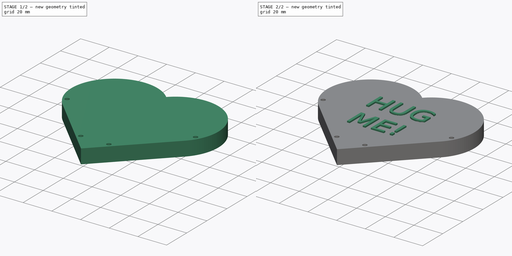
[diagram: build sequence overview — one tinted view per stage of 2, left to right]
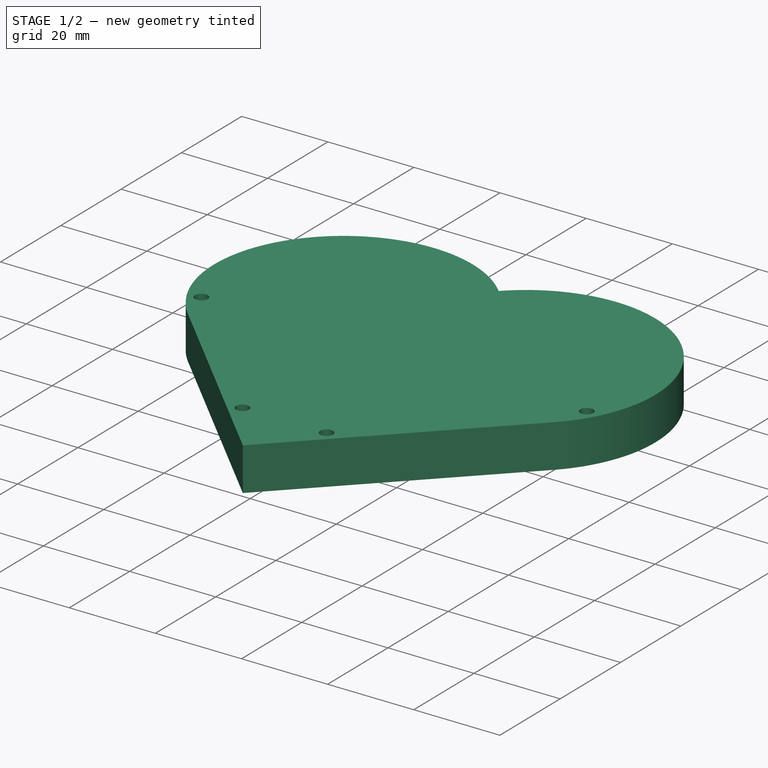
[diagram: stage 1 of 2 — iso view after this stage's code; geometry added in this stage tinted green]
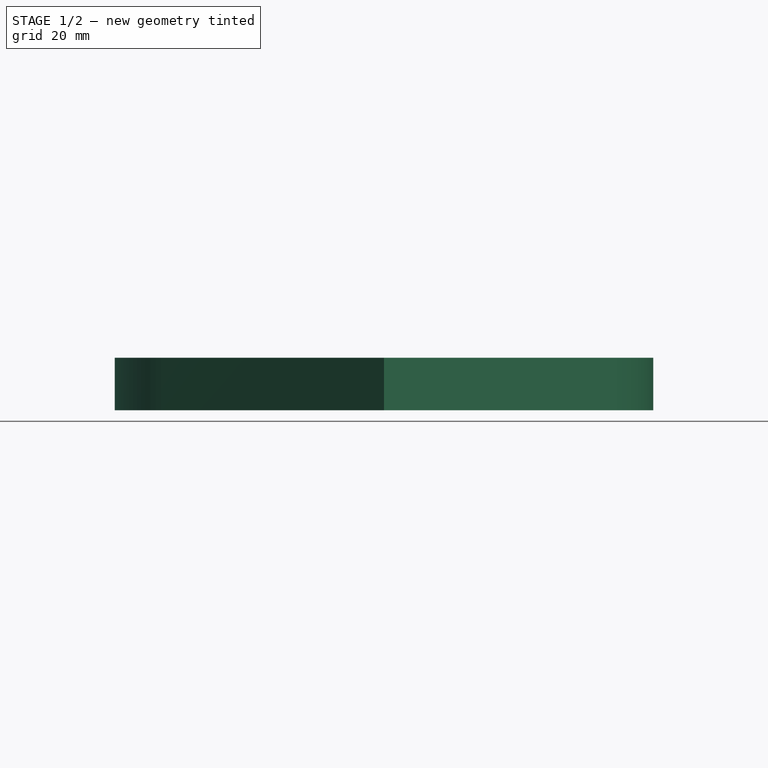
[diagram: stage 1 of 2 — front view after this stage's code; geometry added in this stage tinted green]
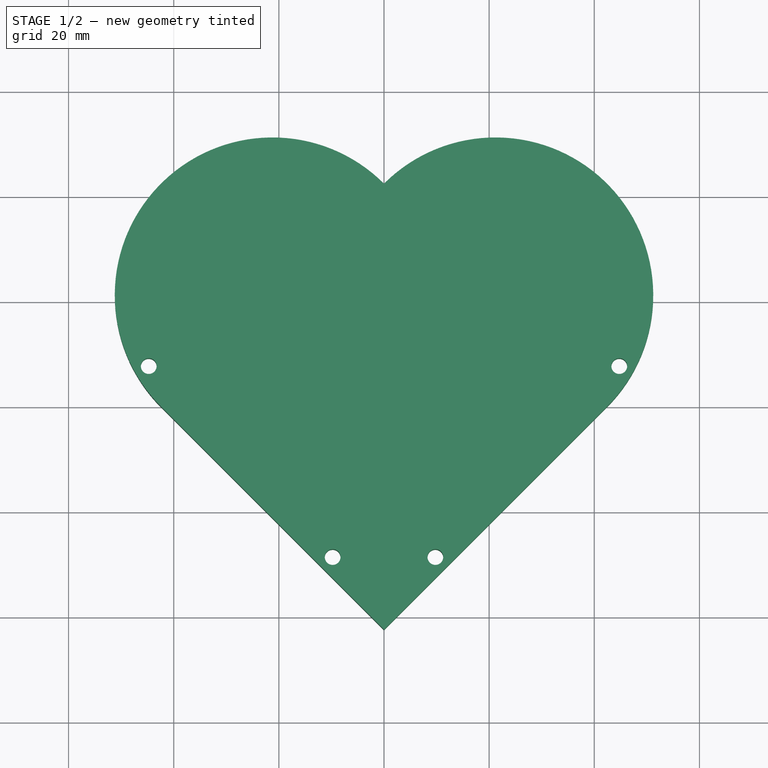
[diagram: stage 1 of 2 — top view after this stage's code; geometry added in this stage tinted green]
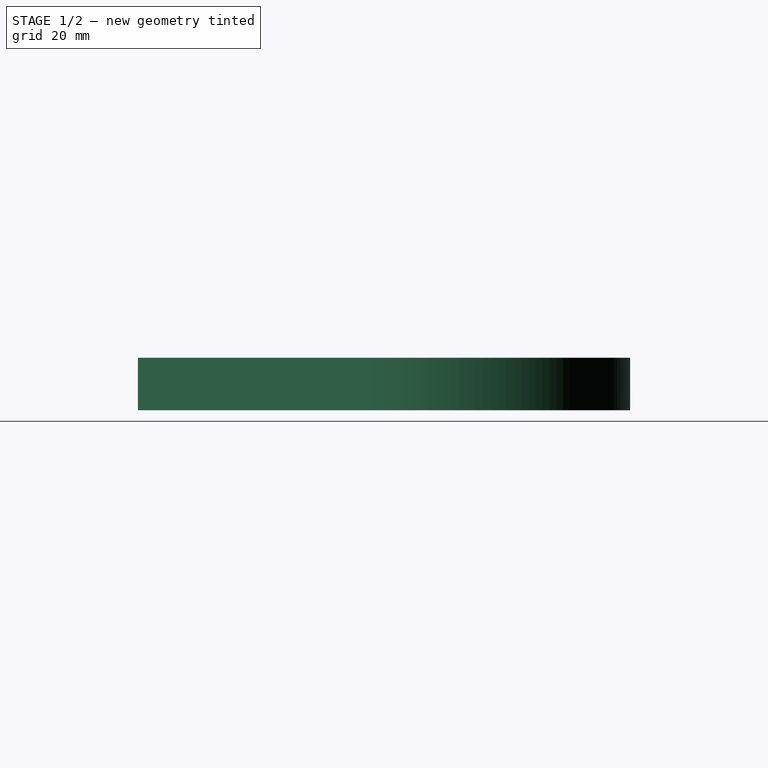
[diagram: stage 1 of 2 — right view after this stage's code; geometry added in this stage tinted green]
FCSTD DOCUMENT  (FreeCAD 0.15R4671 (Git))
Label: heart
License: All rights reserved
LicenseURL: http://en.wikipedia.org/wiki/All_rights_reserved
objects: Part::Feature×7, Sketcher::SketchObject×2, Part::MultiFuse×2, PartDesign::Pad×1, Part::Extrusion×1, PartDesign::Pocket×1
note: 16 computed .brp shape members not serialized (recipe doc carries the construction recipe); baked Part::Feature solids carry a one-line shape summary decoded from their .brp

FEATURE [Sketcher::SketchObject] Sketch001  label="heart"
  sketch-geometry (6):
    g0: LineSegment StartX=0 StartY=-42.4264 StartZ=0 EndX=42.4264 EndY=0 EndZ=0
    g1: LineSegment StartX=0 StartY=-42.4264 StartZ=0 EndX=-42.4264 EndY=0 EndZ=0
    g2: LineSegment [constr] StartX=-42.4264 StartY=0 StartZ=0 EndX=0 EndY=42.4264 EndZ=0
    g3: LineSegment [constr] StartX=0 StartY=42.4264 StartZ=0 EndX=42.4264 EndY=0 EndZ=0
    g4: ArcOfCircle CenterX=-21.2132 CenterY=21.2132 CenterZ=0 NormalX=0 NormalY=0 NormalZ=1 Radius=30 StartAngle=0.785398 EndAngle=3.92699
    g5: ArcOfCircle CenterX=21.2132 CenterY=21.2132 CenterZ=0 NormalX=0 NormalY=0 NormalZ=1 Radius=30 StartAngle=5.49779 EndAngle=8.63938
  constraints (21):
    c: PointOnObject(g0,g-2)
    c: PointOnObject(g0,g-1)
    c: PointOnObject(g1,g-1)
    c: Coincident(g1,g0)
    c: PointOnObject(g2,g-2)
    c: Coincident(g3,g2)
    c: Coincident(g3,g0)
    c: Coincident(g1,g2)
    c: Perpendicular(g1,g0)
    c: Perpendicular(g2,g3)
    c: Equal(g0,g2)
    c: Equal(g2,g3)
    c: Equal(g3,g1)
    c: Coincident(g4,g1)
    c: Coincident(g4,g2)
    c: Coincident(g5,g0)
    c: PointOnObject(g5,g3)
    c: PointOnObject(g5,g3)
    c: PointOnObject(g4,g2)
    c: Distance(g0) = 60
    c: Coincident(g5,g2)
FEATURE [PartDesign::Pad] Pad
  Length = 10
  Length2 = 100
  Reversed = true
  Sketch = -> Sketch001
  Type = 0
FEATURE [Sketcher::SketchObject] Sketch  label="holes"
  Support = -> Pad [Face5]
  sketch-geometry (8):
    g0: LineSegment [constr] StartX=-9.76909 StartY=-28.6077 StartZ=0 EndX=9.76909 EndY=-28.6077 EndZ=0
    g1: LineSegment [constr] StartX=9.76909 StartY=-28.6077 StartZ=0 EndX=44.7525 EndY=7.72123 EndZ=0
    g2: LineSegment [constr] StartX=44.7525 StartY=7.72123 StartZ=0 EndX=-44.7525 EndY=7.72123 EndZ=0
    g3: LineSegment [constr] StartX=-44.7525 StartY=7.72123 StartZ=0 EndX=-9.76909 EndY=-28.6077 EndZ=0
    g4: Circle CenterX=-44.7525 CenterY=7.72123 CenterZ=0 NormalX=0 NormalY=0 NormalZ=1 Radius=1.5
    g5: Circle CenterX=-9.76909 CenterY=-28.6077 CenterZ=0 NormalX=0 NormalY=0 NormalZ=1 Radius=1.5
    g6: Circle CenterX=44.7525 CenterY=7.72123 CenterZ=0 NormalX=0 NormalY=0 NormalZ=1 Radius=1.5
    g7: Circle CenterX=9.76909 CenterY=-28.6077 CenterZ=0 NormalX=0 NormalY=0 NormalZ=1 Radius=1.5
  constraints (16):
    c: Coincident(g0,g1)
    c: Coincident(g1,g2)
    c: Coincident(g2,g3)
    c: Coincident(g3,g0)
    c: Horizontal(g0)
    c: Horizontal(g2)
    c: Coincident(g5,g0)
    c: Coincident(g7,g0)
    c: Coincident(g2,g4)
    c: Coincident(g1,g6)
    c: Symmetric(g2,g1,g-2)
    c: Symmetric(g0,g0,g-2)
    c: Equal(g6,g4)
    c: Equal(g4,g5)
    c: Equal(g5,g7)
    c: Radius(g4) = 1.5
FEATURE [PartDesign::Pocket] Pocket
  Length = 5
  Sketch = -> Sketch
  Type = 1
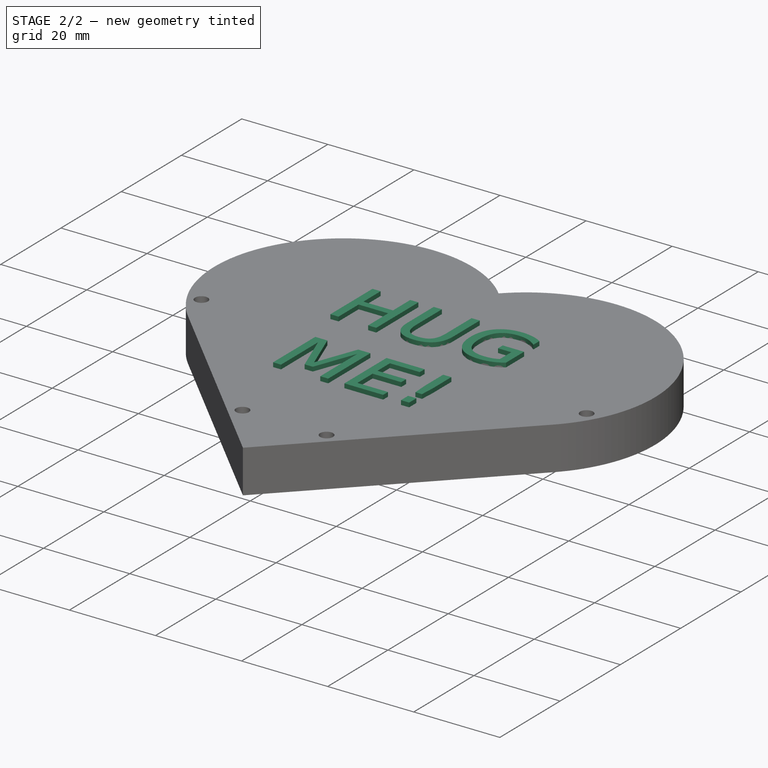
[diagram: stage 2 of 2 — iso view after this stage's code; geometry added in this stage tinted green]
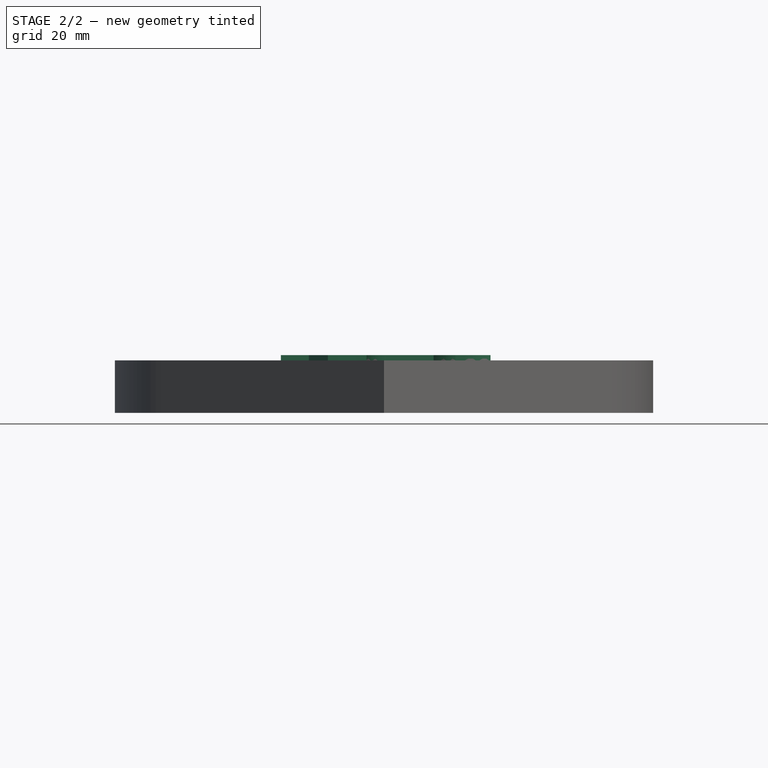
[diagram: stage 2 of 2 — front view after this stage's code; geometry added in this stage tinted green]
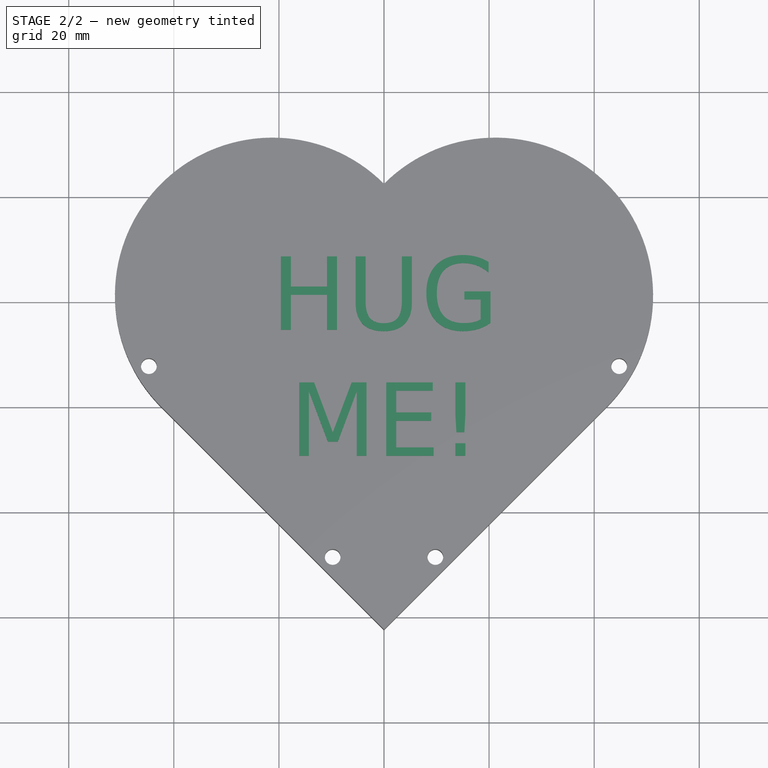
[diagram: stage 2 of 2 — top view after this stage's code; geometry added in this stage tinted green]
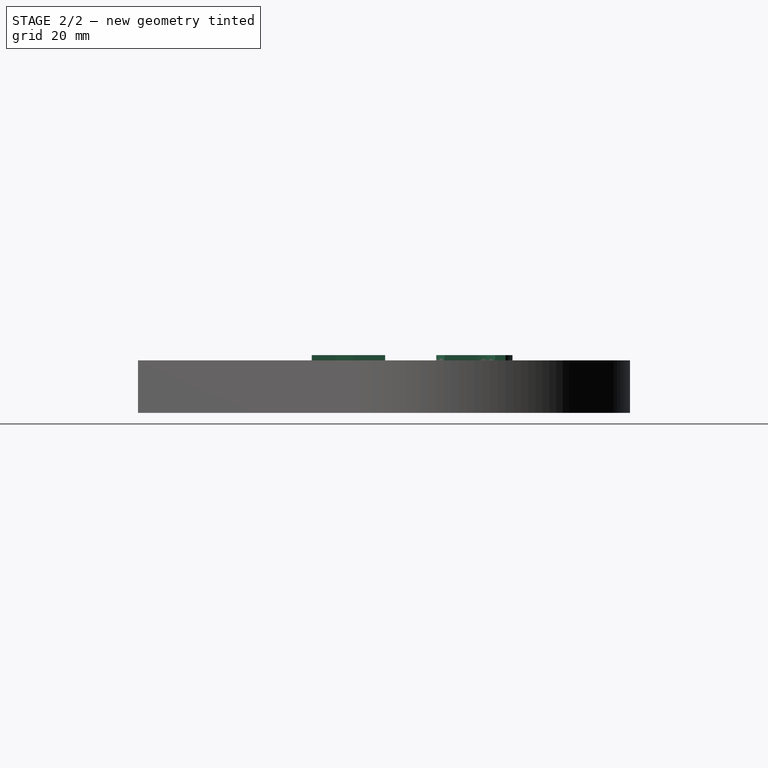
[diagram: stage 2 of 2 — right view after this stage's code; geometry added in this stage tinted green]
FEATURE [Part::Feature] path3050
  shape: bbox 10.66 x 13.99 x 2e-07 mm, 0 faces, 0 solids (baked)
FEATURE [Part::Feature] path3052
  shape: bbox 10.71 x 14.26 x 2e-07 mm, 0 faces, 0 solids (baked)
FEATURE [Part::Feature] path3054
  shape: bbox 12.22 x 14.51 x 2e-07 mm, 0 faces, 0 solids (baked)
FEATURE [Part::Feature] path3056
  shape: bbox 12.8 x 13.99 x 2e-07 mm, 0 faces, 0 solids (baked)
FEATURE [Part::Feature] path3058
  shape: bbox 9.012 x 13.99 x 2e-07 mm, 0 faces, 0 solids (baked)
FEATURE [Part::Feature] path3060
  shape: bbox 1.902 x 2.379 x 2e-07 mm, 0 faces, 0 solids (baked)
FEATURE [Part::Feature] path3060001
  shape: bbox 1.902 x 9.48 x 2e-07 mm, 0 faces, 0 solids (baked)
FEATURE [Part::MultiFuse] Fusion
  Placement = pos=(-19.3351,45.658,0) rot=(0,0,1;0rad)
  Shapes = -> [path3050,path3052,path3054,path3056,path3058,path3060,path3060001]
FEATURE [Part::Extrusion] Extrude
  Base = -> Fusion
  Dir = (0,0,1)
  Solid = true
FEATURE [Part::MultiFuse] Fusion001
  Shapes = -> [Pocket,Extrude]
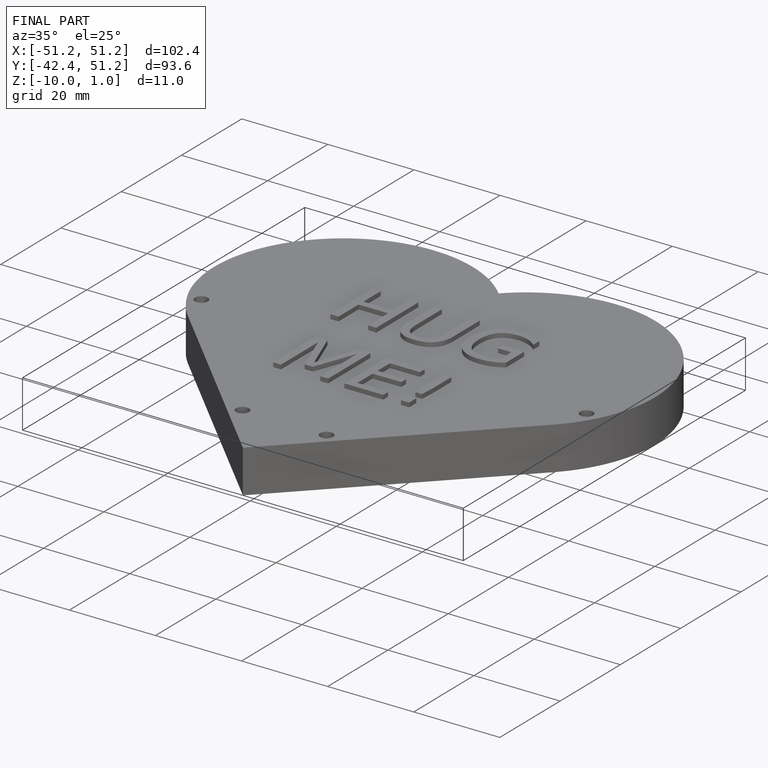
[diagram: finished part — iso view with bounding-box wireframe]
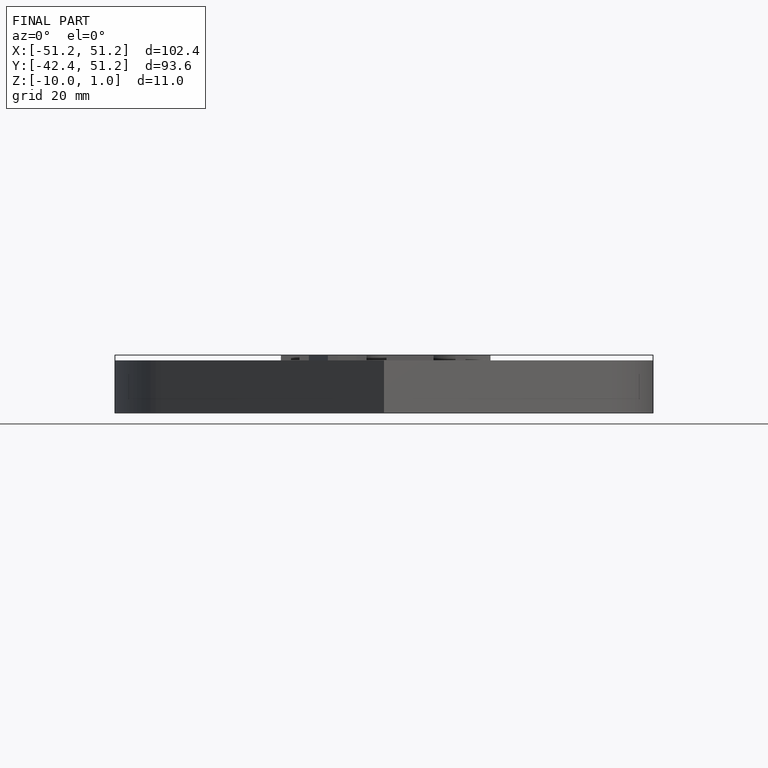
[diagram: finished part — front view with bounding-box wireframe]
